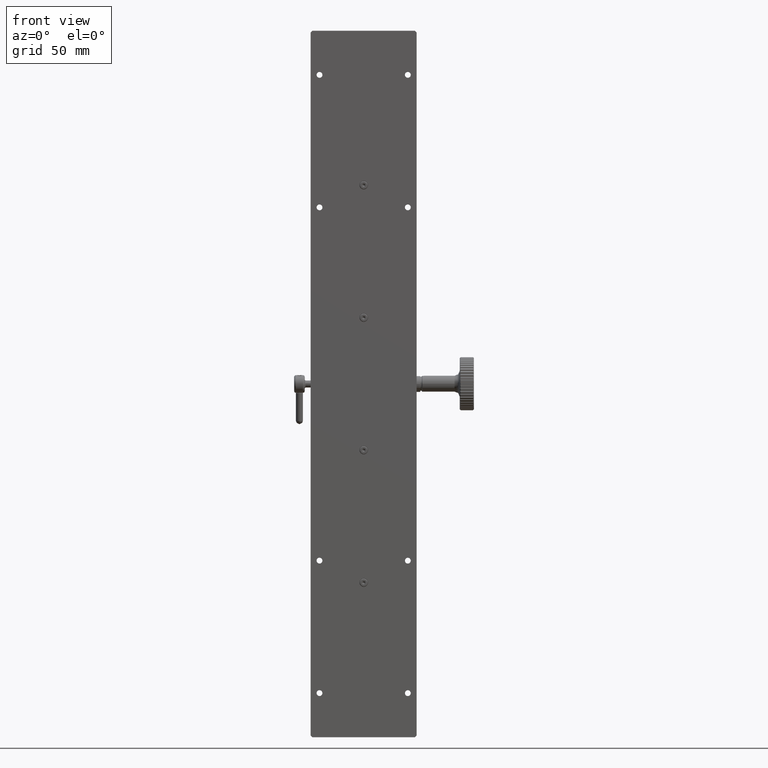
[diagram: clean part render]
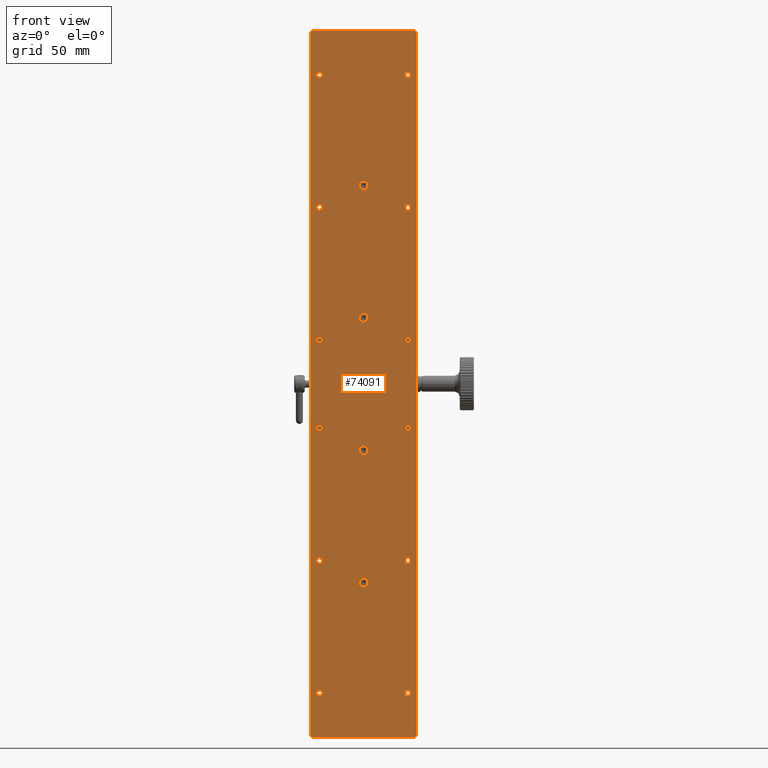
[diagram: same view with one face highlighted and labeled with its STEP entity id]
A machine part, front view. The second image highlights one B-rep face of the part: STEP entity #74091.
In plain terms, the highlighted planar face has unit normal (-0, 1, 0).
Its self-contained STEP definition (entity closure, byte-faithful):
#561 = AXIS2_PLACEMENT_3D ( 'NONE', #84411, #28770, #93222 ) ;
#786 = ORIENTED_EDGE ( 'NONE', *, *, #78729, .F. ) ;
#1200 = VERTEX_POINT ( 'NONE', #82266 ) ;
#1232 = DIRECTION ( 'NONE',  ( -1.000000000000000000, -8.410780489584597367E-15, 0.000000000000000000 ) ) ;
#1812 = VECTOR ( 'NONE', #76545, 1000.000000000000114 ) ;
#2124 = VERTEX_POINT ( 'NONE', #9956 ) ;
#2417 = EDGE_LOOP ( 'NONE', ( #50983 ) ) ;
#2919 = ORIENTED_EDGE ( 'NONE', *, *, #34410, .F. ) ;
#3443 = EDGE_CURVE ( 'NONE', #29825, #29825, #71531, .T. ) ;
#3833 = CIRCLE ( 'NONE', #95110, 1.649999999999984812 ) ;
#4220 = CARTESIAN_POINT ( 'NONE',  ( 39.50156960994753064, 57.10272800986751207, 188.8231807833473113 ) ) ;
#4370 = ORIENTED_EDGE ( 'NONE', *, *, #34828, .F. ) ;
#4733 = DIRECTION ( 'NONE',  ( 0.000000000000000000, 0.000000000000000000, 1.000000000000000000 ) ) ;
#5152 = ORIENTED_EDGE ( 'NONE', *, *, #6435, .T. ) ;
#5681 = CIRCLE ( 'NONE', #95326, 1.649999999999984812 ) ;
#5913 = EDGE_CURVE ( 'NONE', #65960, #46093, #97550, .T. ) ;
#6154 = DIRECTION ( 'NONE',  ( -1.000000000000000000, -8.410780489584597367E-15, 0.000000000000000000 ) ) ;
#6162 = ORIENTED_EDGE ( 'NONE', *, *, #15045, .F. ) ;
#6255 = CARTESIAN_POINT ( 'NONE',  ( 34.50156960994753064, 57.10272800986749075, 413.8231807833473681 ) ) ;
#6435 = EDGE_CURVE ( 'NONE', #16729, #47233, #40227, .T. ) ;
#6944 = VERTEX_POINT ( 'NONE', #39642 ) ;
#9693 = EDGE_LOOP ( 'NONE', ( #67673 ) ) ;
#9956 = CARTESIAN_POINT ( 'NONE',  ( 93.50156960994750932, 57.10272800986790287, 13.82318078334727218 ) ) ;
#10228 = DIRECTION ( 'NONE',  ( 6.982962677686266711E-15, -1.000000000000000000, -0.000000000000000000 ) ) ;
#11152 = AXIS2_PLACEMENT_3D ( 'NONE', #16811, #39673, #65173 ) ;
#11176 = EDGE_CURVE ( 'NONE', #76644, #76644, #12998, .T. ) ;
#11684 = CARTESIAN_POINT ( 'NONE',  ( 37.85156960994753206, 57.10272800986749786, 38.82318078334730416 ) ) ;
#12998 = CIRCLE ( 'NONE', #71081, 1.649999999999998579 ) ;
#13414 = CARTESIAN_POINT ( 'NONE',  ( 67.00156960994755195, 57.10272800986772523, 176.3231807833473397 ) ) ;
#13668 = VECTOR ( 'NONE', #88639, 1000.000000000000000 ) ;
#13714 = CARTESIAN_POINT ( 'NONE',  ( 37.85156960994753206, 57.10272800986749786, 113.8231807833472971 ) ) ;
#14173 = FACE_BOUND ( 'NONE', #9693, .T. ) ;
#14831 = ORIENTED_EDGE ( 'NONE', *, *, #68659, .F. ) ;
#15045 = EDGE_CURVE ( 'NONE', #69385, #46972, #36509, .T. ) ;
#16095 = CARTESIAN_POINT ( 'NONE',  ( 94.50156960994752353, 57.10272800986790998, 13.82318078334726685 ) ) ;
#16442 = EDGE_LOOP ( 'NONE', ( #89022 ) ) ;
#16619 = LINE ( 'NONE', #16095, #77558 ) ;
#16729 = VERTEX_POINT ( 'NONE', #63617 ) ;
#16780 = CARTESIAN_POINT ( 'NONE',  ( 87.85156960994756048, 57.10272800986786024, 238.8231807833473397 ) ) ;
#16811 = CARTESIAN_POINT ( 'NONE',  ( 39.50156960994753064, 57.10272800986751207, 238.8231807833473397 ) ) ;
#16974 = CARTESIAN_POINT ( 'NONE',  ( 93.50156960994752353, 57.10272800986790998, 413.8231807833473681 ) ) ;
#16986 = ORIENTED_EDGE ( 'NONE', *, *, #5913, .T. ) ;
#17333 = EDGE_LOOP ( 'NONE', ( #21567 ) ) ;
#18822 = CARTESIAN_POINT ( 'NONE',  ( 67.00156960994755195, 57.10272800986772523, 251.3231807833473113 ) ) ;
#19937 = FACE_BOUND ( 'NONE', #60251, .T. ) ;
#20807 = DIRECTION ( 'NONE',  ( 6.982962677686266711E-15, -1.000000000000000000, -0.000000000000000000 ) ) ;
#21307 = AXIS2_PLACEMENT_3D ( 'NONE', #30372, #93805, #52756 ) ;
#21567 = ORIENTED_EDGE ( 'NONE', *, *, #41741, .F. ) ;
#21707 = VERTEX_POINT ( 'NONE', #92446 ) ;
#21972 = FACE_BOUND ( 'NONE', #47385, .T. ) ;
#22300 = EDGE_CURVE ( 'NONE', #6944, #6944, #74614, .T. ) ;
#22919 = CARTESIAN_POINT ( 'NONE',  ( 37.85156960994754627, 57.10272800986749786, 313.8231807833472544 ) ) ;
#24083 = CARTESIAN_POINT ( 'NONE',  ( 89.50156960994753774, 57.10272800986787445, 238.8231807833473397 ) ) ;
#24707 = DIRECTION ( 'NONE',  ( -0.000000000000000000, -0.000000000000000000, -1.000000000000000000 ) ) ;
#25037 = CARTESIAN_POINT ( 'NONE',  ( 64.50156960994755195, 57.10272800986770392, 101.3231807833472971 ) ) ;
#25067 = ORIENTED_EDGE ( 'NONE', *, *, #36293, .F. ) ;
#25186 = FACE_BOUND ( 'NONE', #68418, .T. ) ;
#26623 = VERTEX_POINT ( 'NONE', #48480 ) ;
#26915 = EDGE_CURVE ( 'NONE', #65960, #47498, #63717, .T. ) ;
#28770 = DIRECTION ( 'NONE',  ( -6.982962677686266711E-15, 1.000000000000000000, 0.000000000000000000 ) ) ;
#28976 = AXIS2_PLACEMENT_3D ( 'NONE', #90794, #41425, #49735 ) ;
#29271 = FACE_BOUND ( 'NONE', #2417, .T. ) ;
#29825 = VERTEX_POINT ( 'NONE', #11684 ) ;
#30036 = CARTESIAN_POINT ( 'NONE',  ( 89.50156960994753774, 57.10272800986787445, 188.8231807833473113 ) ) ;
#30372 = CARTESIAN_POINT ( 'NONE',  ( 64.50156960994755195, 57.10272800986770392, 251.3231807833473113 ) ) ;
#30676 = DIRECTION ( 'NONE',  ( 1.000000000000000000, 8.326672684688666165E-15, 0.000000000000000000 ) ) ;
#30805 = DIRECTION ( 'NONE',  ( -1.000000000000000000, -8.410780489584597367E-15, 0.000000000000000000 ) ) ;
#31042 = CARTESIAN_POINT ( 'NONE',  ( 87.85156960994756048, 57.10272800986786024, 388.8231807833473113 ) ) ;
#31418 = CARTESIAN_POINT ( 'NONE',  ( 94.50156960994752353, 57.10272800986790998, 412.8231807833473681 ) ) ;
#31699 = DIRECTION ( 'NONE',  ( -1.000000000000000000, -6.982962677686266711E-15, 0.000000000000000000 ) ) ;
#32156 = DIRECTION ( 'NONE',  ( 6.982962677686266711E-15, -1.000000000000000000, -0.000000000000000000 ) ) ;
#32162 = CIRCLE ( 'NONE', #75367, 2.500000000000002220 ) ;
#33198 = CARTESIAN_POINT ( 'NONE',  ( 89.50156960994753774, 57.10272800986787445, 113.8231807833472971 ) ) ;
#33951 = AXIS2_PLACEMENT_3D ( 'NONE', #57542, #10228, #59590 ) ;
#34315 = CARTESIAN_POINT ( 'NONE',  ( 34.50156960994753064, 57.10272800986749786, 14.82318078334728462 ) ) ;
#34410 = EDGE_CURVE ( 'NONE', #1200, #1200, #60958, .T. ) ;
#34528 = DIRECTION ( 'NONE',  ( -1.000000000000000000, -8.410780489584597367E-15, 0.000000000000000000 ) ) ;
#34828 = EDGE_CURVE ( 'NONE', #88031, #88031, #59319, .T. ) ;
#35540 = FACE_BOUND ( 'NONE', #90417, .T. ) ;
#35654 = ORIENTED_EDGE ( 'NONE', *, *, #69526, .F. ) ;
#35776 = VERTEX_POINT ( 'NONE', #53430 ) ;
#36059 = VECTOR ( 'NONE', #89113, 1000.000000000000114 ) ;
#36293 = EDGE_CURVE ( 'NONE', #26623, #26623, #75950, .T. ) ;
#36509 = LINE ( 'NONE', #83839, #1812 ) ;
#36574 = FACE_BOUND ( 'NONE', #42207, .T. ) ;
#36807 = CARTESIAN_POINT ( 'NONE',  ( 87.85156960994756048, 57.10272800986786024, 313.8231807833473113 ) ) ;
#37084 = CARTESIAN_POINT ( 'NONE',  ( 39.50156960994753064, 57.10272800986751207, 313.8231807833472544 ) ) ;
#37171 = ORIENTED_EDGE ( 'NONE', *, *, #97055, .F. ) ;
#37416 = DIRECTION ( 'NONE',  ( 6.982962677686266711E-15, -1.000000000000000000, -0.000000000000000000 ) ) ;
#37571 = FACE_BOUND ( 'NONE', #56257, .T. ) ;
#38327 = AXIS2_PLACEMENT_3D ( 'NONE', #69130, #37416, #46747 ) ;
#39571 = DIRECTION ( 'NONE',  ( 1.000000000000000000, 8.326672684688711919E-15, 0.000000000000000000 ) ) ;
#39642 = CARTESIAN_POINT ( 'NONE',  ( 67.00156960994753774, 57.10272800986772523, 326.3231807833472544 ) ) ;
#39673 = DIRECTION ( 'NONE',  ( 6.982962677686266711E-15, -1.000000000000000000, -0.000000000000000000 ) ) ;
#40223 = DIRECTION ( 'NONE',  ( 6.982962677686266711E-15, -1.000000000000000000, 0.000000000000000000 ) ) ;
#40227 = LINE ( 'NONE', #80281, #36059 ) ;
#40709 = DIRECTION ( 'NONE',  ( 6.982962677686266711E-15, -1.000000000000000000, -0.000000000000000000 ) ) ;
#41261 = CIRCLE ( 'NONE', #61223, 1.649999999999984812 ) ;
#41425 = DIRECTION ( 'NONE',  ( 6.982962677686266711E-15, -1.000000000000000000, -0.000000000000000000 ) ) ;
#41676 = VECTOR ( 'NONE', #65326, 1000.000000000000114 ) ;
#41741 = EDGE_CURVE ( 'NONE', #90073, #90073, #89400, .T. ) ;
#41809 = CARTESIAN_POINT ( 'NONE',  ( 94.50156960994752353, 57.10272800986790998, 413.8231807833473681 ) ) ;
#42207 = EDGE_LOOP ( 'NONE', ( #57626 ) ) ;
#42902 = CARTESIAN_POINT ( 'NONE',  ( 39.50156960994753064, 57.10272800986751207, 113.8231807833472971 ) ) ;
#43339 = CARTESIAN_POINT ( 'NONE',  ( 35.50156960994751643, 57.10272800986759734, 13.82318078334728639 ) ) ;
#43563 = VERTEX_POINT ( 'NONE', #36807 ) ;
#43839 = FACE_BOUND ( 'NONE', #17333, .T. ) ;
#44483 = EDGE_LOOP ( 'NONE', ( #2919 ) ) ;
#46093 = VERTEX_POINT ( 'NONE', #67178 ) ;
#46124 = DIRECTION ( 'NONE',  ( 6.982962677686266711E-15, -1.000000000000000000, -0.000000000000000000 ) ) ;
#46747 = DIRECTION ( 'NONE',  ( -1.000000000000000000, -8.410780489584526369E-15, 0.000000000000000000 ) ) ;
#46972 = VERTEX_POINT ( 'NONE', #34315 ) ;
#47233 = VERTEX_POINT ( 'NONE', #75795 ) ;
#47282 = CARTESIAN_POINT ( 'NONE',  ( 64.50156960994755195, 57.10272800986770392, 176.3231807833473397 ) ) ;
#47385 = EDGE_LOOP ( 'NONE', ( #4370 ) ) ;
#47498 = VERTEX_POINT ( 'NONE', #100746 ) ;
#48480 = CARTESIAN_POINT ( 'NONE',  ( 87.85156960994754627, 57.10272800986786024, 113.8231807833472971 ) ) ;
#48577 = LINE ( 'NONE', #41809, #13668 ) ;
#49429 = AXIS2_PLACEMENT_3D ( 'NONE', #87750, #70584, #6154 ) ;
#49735 = DIRECTION ( 'NONE',  ( -1.000000000000000000, -8.410780489584597367E-15, 0.000000000000000000 ) ) ;
#49998 = ORIENTED_EDGE ( 'NONE', *, *, #94747, .F. ) ;
#50852 = CIRCLE ( 'NONE', #92444, 1.649999999999984812 ) ;
#50983 = ORIENTED_EDGE ( 'NONE', *, *, #80058, .F. ) ;
#51145 = ORIENTED_EDGE ( 'NONE', *, *, #11176, .F. ) ;
#51521 = ORIENTED_EDGE ( 'NONE', *, *, #63460, .F. ) ;
#51893 = ORIENTED_EDGE ( 'NONE', *, *, #87702, .F. ) ;
#52174 = FACE_BOUND ( 'NONE', #102187, .T. ) ;
#52409 = VERTEX_POINT ( 'NONE', #13414 ) ;
#52718 = AXIS2_PLACEMENT_3D ( 'NONE', #33198, #32156, #102908 ) ;
#52756 = DIRECTION ( 'NONE',  ( 1.000000000000000000, 8.326672684688666165E-15, 0.000000000000000000 ) ) ;
#53430 = CARTESIAN_POINT ( 'NONE',  ( 87.85156960994754627, 57.10272800986786024, 38.82318078334730416 ) ) ;
#54511 = DIRECTION ( 'NONE',  ( -0.7071067811865474617, 0.000000000000000000, -0.7071067811865474617 ) ) ;
#56257 = EDGE_LOOP ( 'NONE', ( #25067 ) ) ;
#56303 = EDGE_LOOP ( 'NONE', ( #35654 ) ) ;
#57542 = CARTESIAN_POINT ( 'NONE',  ( 89.50156960994753774, 57.10272800986787445, 38.82318078334730416 ) ) ;
#57626 = ORIENTED_EDGE ( 'NONE', *, *, #90247, .F. ) ;
#59319 = CIRCLE ( 'NONE', #65942, 1.649999999999984812 ) ;
#59590 = DIRECTION ( 'NONE',  ( -1.000000000000000000, -8.410780489584526369E-15, 0.000000000000000000 ) ) ;
#60078 = DIRECTION ( 'NONE',  ( -1.000000000000000000, -8.410780489584526369E-15, 0.000000000000000000 ) ) ;
#60251 = EDGE_LOOP ( 'NONE', ( #87969 ) ) ;
#60958 = CIRCLE ( 'NONE', #11152, 1.649999999999984812 ) ;
#60986 = PLANE ( 'NONE',  #561 ) ;
#61223 = AXIS2_PLACEMENT_3D ( 'NONE', #73544, #74043, #34528 ) ;
#61752 = VERTEX_POINT ( 'NONE', #31042 ) ;
#62256 = CARTESIAN_POINT ( 'NONE',  ( 37.85156960994754627, 57.10272800986749786, 388.8231807833472544 ) ) ;
#62769 = VERTEX_POINT ( 'NONE', #62256 ) ;
#63460 = EDGE_CURVE ( 'NONE', #46972, #47233, #93084, .T. ) ;
#63470 = EDGE_CURVE ( 'NONE', #94158, #94158, #50852, .T. ) ;
#63617 = CARTESIAN_POINT ( 'NONE',  ( 35.50156960994751643, 57.10272800986759734, 413.8231807833473681 ) ) ;
#63717 = LINE ( 'NONE', #64229, #74756 ) ;
#64229 = CARTESIAN_POINT ( 'NONE',  ( 94.50156960994752353, 57.10272800986790998, 413.8231807833473681 ) ) ;
#65173 = DIRECTION ( 'NONE',  ( -1.000000000000000000, -8.410780489584597367E-15, 0.000000000000000000 ) ) ;
#65326 = DIRECTION ( 'NONE',  ( -0.7071067811865474617, 0.000000000000000000, 0.7071067811865474617 ) ) ;
#65581 = ORIENTED_EDGE ( 'NONE', *, *, #22300, .F. ) ;
#65942 = AXIS2_PLACEMENT_3D ( 'NONE', #24083, #40709, #1232 ) ;
#65960 = VERTEX_POINT ( 'NONE', #31418 ) ;
#67178 = CARTESIAN_POINT ( 'NONE',  ( 93.50156960994750932, 57.10272800986790287, 413.8231807833473681 ) ) ;
#67673 = ORIENTED_EDGE ( 'NONE', *, *, #63470, .F. ) ;
#67891 = EDGE_LOOP ( 'NONE', ( #49998 ) ) ;
#68287 = FACE_BOUND ( 'NONE', #56303, .T. ) ;
#68418 = EDGE_LOOP ( 'NONE', ( #78372 ) ) ;
#68659 = EDGE_CURVE ( 'NONE', #16729, #46093, #48577, .T. ) ;
#69130 = CARTESIAN_POINT ( 'NONE',  ( 39.50156960994753064, 57.10272800986751207, 38.82318078334730416 ) ) ;
#69385 = VERTEX_POINT ( 'NONE', #43339 ) ;
#69526 = EDGE_CURVE ( 'NONE', #85846, #85846, #3833, .T. ) ;
#69667 = DIRECTION ( 'NONE',  ( -1.000000000000000000, -8.410780489584597367E-15, 0.000000000000000000 ) ) ;
#70584 = DIRECTION ( 'NONE',  ( 6.982962677686266711E-15, -1.000000000000000000, -0.000000000000000000 ) ) ;
#71081 = AXIS2_PLACEMENT_3D ( 'NONE', #42902, #99621, #60078 ) ;
#71531 = CIRCLE ( 'NONE', #38327, 1.649999999999998579 ) ;
#72466 = CARTESIAN_POINT ( 'NONE',  ( 64.50156960994753774, 57.10272800986770392, 326.3231807833472544 ) ) ;
#73544 = CARTESIAN_POINT ( 'NONE',  ( 39.50156960994753064, 57.10272800986751207, 388.8231807833472544 ) ) ;
#74043 = DIRECTION ( 'NONE',  ( 6.982962677686266711E-15, -1.000000000000000000, -0.000000000000000000 ) ) ;
#74091 = ADVANCED_FACE ( 'NONE', ( #96435, #25186, #76608, #43839, #19937, #52174, #77109, #14173, #83903, #68287, #100533, #36574, #75583, #21972, #35540, #37571, #29271 ), #60986, .F. ) ;
#74614 = CIRCLE ( 'NONE', #86186, 2.500000000000002220 ) ;
#74756 = VECTOR ( 'NONE', #24707, 1000.000000000000000 ) ;
#75307 = VERTEX_POINT ( 'NONE', #90910 ) ;
#75367 = AXIS2_PLACEMENT_3D ( 'NONE', #47282, #101943, #30676 ) ;
#75583 = FACE_BOUND ( 'NONE', #16442, .T. ) ;
#75761 = EDGE_CURVE ( 'NONE', #52409, #52409, #32162, .T. ) ;
#75795 = CARTESIAN_POINT ( 'NONE',  ( 34.50156960994753064, 57.10272800986749786, 412.8231807833473681 ) ) ;
#75950 = CIRCLE ( 'NONE', #52718, 1.649999999999998579 ) ;
#76037 = EDGE_CURVE ( 'NONE', #21707, #21707, #93598, .T. ) ;
#76545 = DIRECTION ( 'NONE',  ( -0.7071067811865474617, 0.000000000000000000, 0.7071067811865474617 ) ) ;
#76608 = FACE_BOUND ( 'NONE', #79173, .T. ) ;
#76644 = VERTEX_POINT ( 'NONE', #13714 ) ;
#77109 = FACE_BOUND ( 'NONE', #91842, .T. ) ;
#77558 = VECTOR ( 'NONE', #31699, 1000.000000000000000 ) ;
#77628 = DIRECTION ( 'NONE',  ( 6.982962677686266711E-15, -1.000000000000000000, -0.000000000000000000 ) ) ;
#78372 = ORIENTED_EDGE ( 'NONE', *, *, #76037, .F. ) ;
#78729 = EDGE_CURVE ( 'NONE', #75307, #75307, #5681, .T. ) ;
#79173 = EDGE_LOOP ( 'NONE', ( #65581 ) ) ;
#79555 = EDGE_LOOP ( 'NONE', ( #37171, #101797, #16986, #14831, #5152, #51521, #6162, #51893 ) ) ;
#79860 = EDGE_CURVE ( 'NONE', #43563, #43563, #87072, .T. ) ;
#80058 = EDGE_CURVE ( 'NONE', #35776, #35776, #93749, .T. ) ;
#80281 = CARTESIAN_POINT ( 'NONE',  ( 35.50156960994753064, 57.10272800986749786, 413.8231807833473681 ) ) ;
#80296 = ORIENTED_EDGE ( 'NONE', *, *, #3443, .F. ) ;
#82266 = CARTESIAN_POINT ( 'NONE',  ( 37.85156960994754627, 57.10272800986749786, 238.8231807833473397 ) ) ;
#83839 = CARTESIAN_POINT ( 'NONE',  ( 34.50156960994753064, 57.10272800986749786, 14.82318078334728106 ) ) ;
#83903 = FACE_BOUND ( 'NONE', #44483, .T. ) ;
#84411 = CARTESIAN_POINT ( 'NONE',  ( 94.50156960994752353, 57.10272800986790998, 413.8231807833473681 ) ) ;
#85846 = VERTEX_POINT ( 'NONE', #22919 ) ;
#86186 = AXIS2_PLACEMENT_3D ( 'NONE', #72466, #40223, #97419 ) ;
#86758 = CARTESIAN_POINT ( 'NONE',  ( 94.50156960994752353, 57.10272800986790287, 14.82318078334725442 ) ) ;
#87072 = CIRCLE ( 'NONE', #28976, 1.649999999999984812 ) ;
#87702 = EDGE_CURVE ( 'NONE', #2124, #69385, #16619, .T. ) ;
#87750 = CARTESIAN_POINT ( 'NONE',  ( 89.50156960994753774, 57.10272800986787445, 388.8231807833473113 ) ) ;
#87969 = ORIENTED_EDGE ( 'NONE', *, *, #75761, .F. ) ;
#88031 = VERTEX_POINT ( 'NONE', #16780 ) ;
#88639 = DIRECTION ( 'NONE',  ( 1.000000000000000000, 6.982962677686266711E-15, -0.000000000000000000 ) ) ;
#89022 = ORIENTED_EDGE ( 'NONE', *, *, #79860, .F. ) ;
#89113 = DIRECTION ( 'NONE',  ( -0.7071067811865474617, 0.000000000000000000, -0.7071067811865474617 ) ) ;
#89304 = CIRCLE ( 'NONE', #49429, 1.649999999999984812 ) ;
#89400 = CIRCLE ( 'NONE', #21307, 2.500000000000002220 ) ;
#90073 = VERTEX_POINT ( 'NONE', #18822 ) ;
#90247 = EDGE_CURVE ( 'NONE', #61752, #61752, #89304, .T. ) ;
#90417 = EDGE_LOOP ( 'NONE', ( #786 ) ) ;
#90763 = VECTOR ( 'NONE', #4733, 1000.000000000000000 ) ;
#90794 = CARTESIAN_POINT ( 'NONE',  ( 89.50156960994753774, 57.10272800986787445, 313.8231807833473113 ) ) ;
#90910 = CARTESIAN_POINT ( 'NONE',  ( 87.85156960994756048, 57.10272800986786024, 188.8231807833473113 ) ) ;
#91842 = EDGE_LOOP ( 'NONE', ( #51145 ) ) ;
#91945 = DIRECTION ( 'NONE',  ( -1.000000000000000000, -8.410780489584597367E-15, 0.000000000000000000 ) ) ;
#92444 = AXIS2_PLACEMENT_3D ( 'NONE', #4220, #20807, #69667 ) ;
#92446 = CARTESIAN_POINT ( 'NONE',  ( 67.00156960994753774, 57.10272800986772523, 101.3231807833472971 ) ) ;
#93084 = LINE ( 'NONE', #6255, #90763 ) ;
#93222 = DIRECTION ( 'NONE',  ( -1.000000000000000000, -6.982962677686266711E-15, 0.000000000000000000 ) ) ;
#93598 = CIRCLE ( 'NONE', #96968, 2.499999999999988454 ) ;
#93749 = CIRCLE ( 'NONE', #33951, 1.649999999999998579 ) ;
#93805 = DIRECTION ( 'NONE',  ( 6.982962677686266711E-15, -1.000000000000000000, 0.000000000000000000 ) ) ;
#94036 = LINE ( 'NONE', #86758, #99237 ) ;
#94158 = VERTEX_POINT ( 'NONE', #100956 ) ;
#94747 = EDGE_CURVE ( 'NONE', #62769, #62769, #41261, .T. ) ;
#95110 = AXIS2_PLACEMENT_3D ( 'NONE', #37084, #77628, #30805 ) ;
#95326 = AXIS2_PLACEMENT_3D ( 'NONE', #30036, #46124, #91945 ) ;
#96287 = DIRECTION ( 'NONE',  ( 6.982962677686266711E-15, -1.000000000000000000, 0.000000000000000000 ) ) ;
#96435 = FACE_OUTER_BOUND ( 'NONE', #79555, .T. ) ;
#96968 = AXIS2_PLACEMENT_3D ( 'NONE', #25037, #96287, #39571 ) ;
#97055 = EDGE_CURVE ( 'NONE', #47498, #2124, #94036, .T. ) ;
#97419 = DIRECTION ( 'NONE',  ( 1.000000000000000000, 8.326672684688666165E-15, 0.000000000000000000 ) ) ;
#97550 = LINE ( 'NONE', #16974, #41676 ) ;
#99237 = VECTOR ( 'NONE', #54511, 1000.000000000000114 ) ;
#99621 = DIRECTION ( 'NONE',  ( 6.982962677686266711E-15, -1.000000000000000000, -0.000000000000000000 ) ) ;
#100533 = FACE_BOUND ( 'NONE', #67891, .T. ) ;
#100746 = CARTESIAN_POINT ( 'NONE',  ( 94.50156960994752353, 57.10272800986790287, 14.82318078334722955 ) ) ;
#100956 = CARTESIAN_POINT ( 'NONE',  ( 37.85156960994754627, 57.10272800986749786, 188.8231807833473113 ) ) ;
#101797 = ORIENTED_EDGE ( 'NONE', *, *, #26915, .F. ) ;
#101943 = DIRECTION ( 'NONE',  ( 6.982962677686266711E-15, -1.000000000000000000, 0.000000000000000000 ) ) ;
#102187 = EDGE_LOOP ( 'NONE', ( #80296 ) ) ;
#102908 = DIRECTION ( 'NONE',  ( -1.000000000000000000, -8.410780489584526369E-15, 0.000000000000000000 ) ) ;